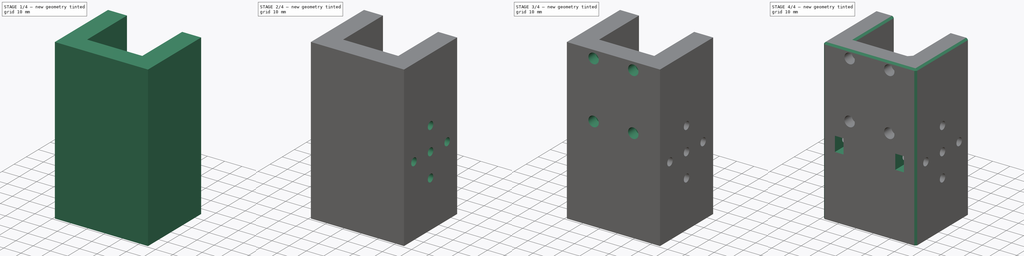
[diagram: build sequence overview — one tinted view per stage of 4, left to right]
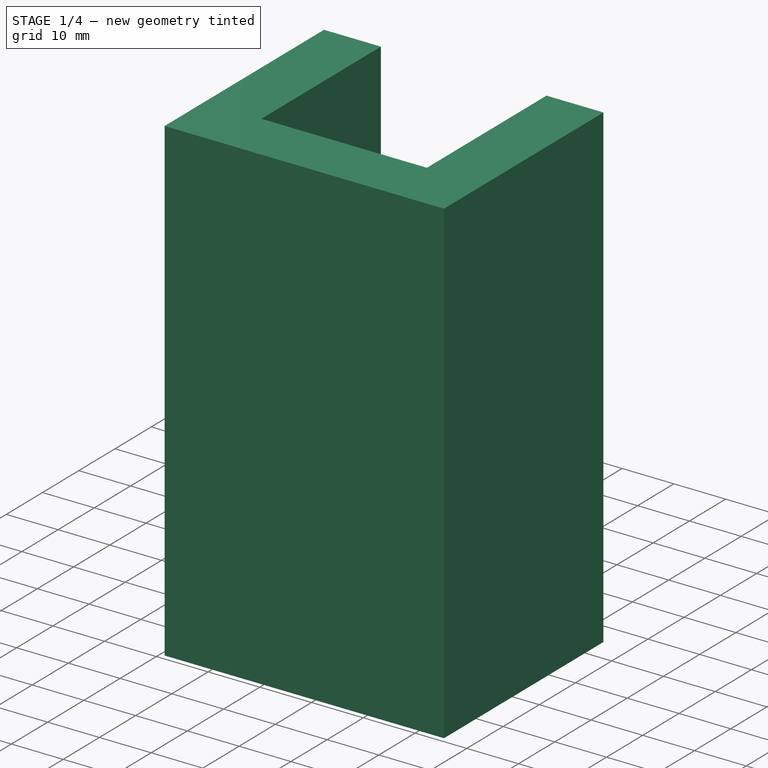
[diagram: stage 1 of 4 — iso view after this stage's code; geometry added in this stage tinted green]
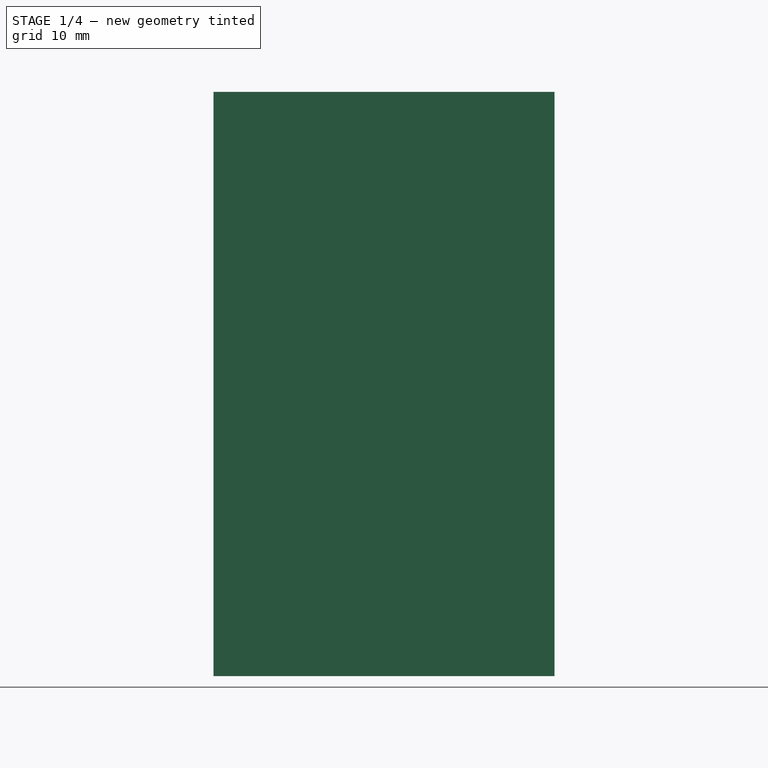
[diagram: stage 1 of 4 — front view after this stage's code; geometry added in this stage tinted green]
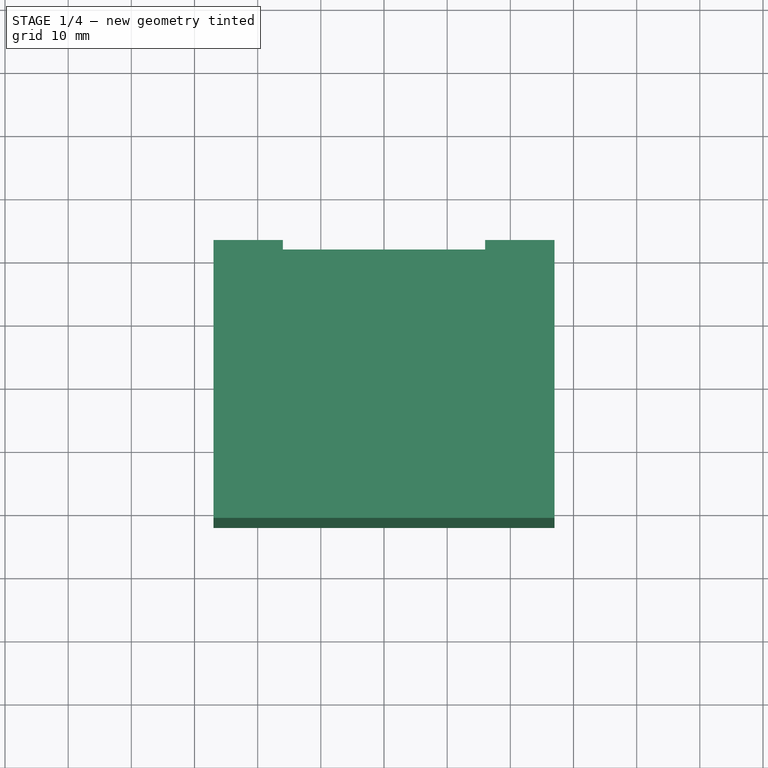
[diagram: stage 1 of 4 — top view after this stage's code; geometry added in this stage tinted green]
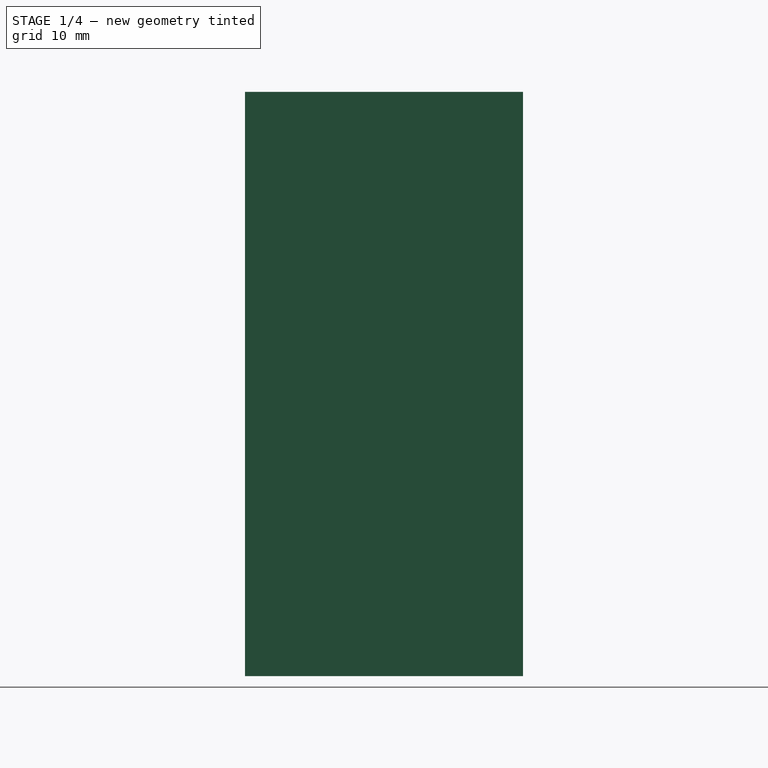
[diagram: stage 1 of 4 — right view after this stage's code; geometry added in this stage tinted green]
FCSTD DOCUMENT  (FreeCAD 0.19R24291 (Git))
Label: adapt_cameraLarger_ins_mount
License: All rights reserved
LicenseURL: http://en.wikipedia.org/wiki/All_rights_reserved
objects: Sketcher::SketchObject×8, PartDesign::Pocket×4, PartDesign::Hole×4, PartDesign::Pad×1, PartDesign::Chamfer×1, PartDesign::Body×1
note: 29 computed .brp shape members not serialized (recipe doc carries the construction recipe); baked Part::Feature solids carry a one-line shape summary decoded from their .brp

FEATURE [Sketcher::SketchObject] Sketch
  FullyConstrained = true
  MapMode = 5
  Support = -> [XY_Plane]
  sketch-geometry (4):
    g0: LineSegment StartX=-27 StartY=22 StartZ=0 EndX=27 EndY=22 EndZ=0
    g1: LineSegment StartX=27 StartY=22 StartZ=0 EndX=27 EndY=-22 EndZ=0
    g2: LineSegment StartX=27 StartY=-22 StartZ=0 EndX=-27 EndY=-22 EndZ=0
    g3: LineSegment StartX=-27 StartY=-22 StartZ=0 EndX=-27 EndY=22 EndZ=0
  constraints (12):
    c: Coincident(g0,g1)
    c: Coincident(g1,g2)
    c: Coincident(g2,g3)
    c: Coincident(g3,g0)
    c: Horizontal(g0)
    c: Horizontal(g2)
    c: Vertical(g1)
    c: Vertical(g3)
    c: DistanceX(g0,g0) = 54
    c: DistanceY(g1,g1) = 44
    c: DistanceY(g-1,g0) = 22
    c: DistanceX(g-1,g0) = 27
FEATURE [PartDesign::Pad] Pad
  Direction = (1,1,1)
  Length = 92.5
  Length2 = 100
  Profile = -> Sketch
  Type = 0
FEATURE [Sketcher::SketchObject] Sketch001
  FullyConstrained = true
  MapMode = 5
  Placement = pos=(0,0,92.5) rot=(0,0,1;0rad)
  Support = -> [Pad]
  sketch-geometry (4):
    g0: LineSegment StartX=-16 StartY=33 StartZ=0 EndX=16 EndY=33 EndZ=0
    g1: LineSegment StartX=16 StartY=33 StartZ=0 EndX=16 EndY=-11 EndZ=0
    g2: LineSegment StartX=16 StartY=-11 StartZ=0 EndX=-16 EndY=-11 EndZ=0
    g3: LineSegment StartX=-16 StartY=-11 StartZ=0 EndX=-16 EndY=33 EndZ=0
  constraints (12):
    c: Coincident(g0,g1)
    c: Coincident(g1,g2)
    c: Coincident(g2,g3)
    c: Coincident(g3,g0)
    c: Horizontal(g0)
    c: Horizontal(g2)
    c: Vertical(g1)
    c: Vertical(g3)
    c: DistanceX(g0,g0) = 32
    c: DistanceX(g0,g-1) = 16
    c: DistanceY(g1,g-1) = 11
    c: DistanceY(g1,g1) = 44
FEATURE [PartDesign::Pocket] Pocket
  BaseFeature = -> Pad
  Length = 86.5
  Length2 = 100
  Profile = -> Sketch001
  Type = 0
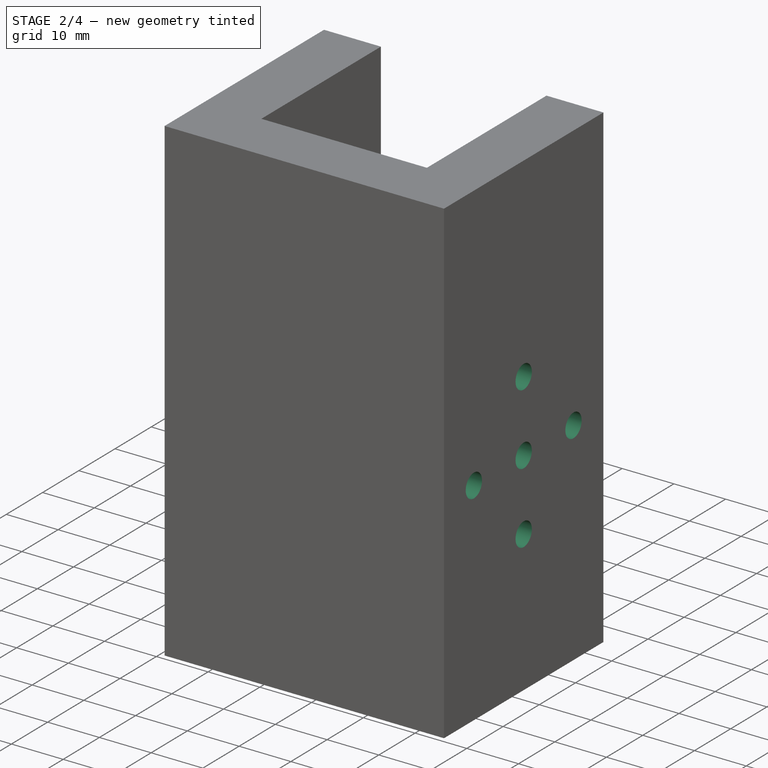
[diagram: stage 2 of 4 — iso view after this stage's code; geometry added in this stage tinted green]
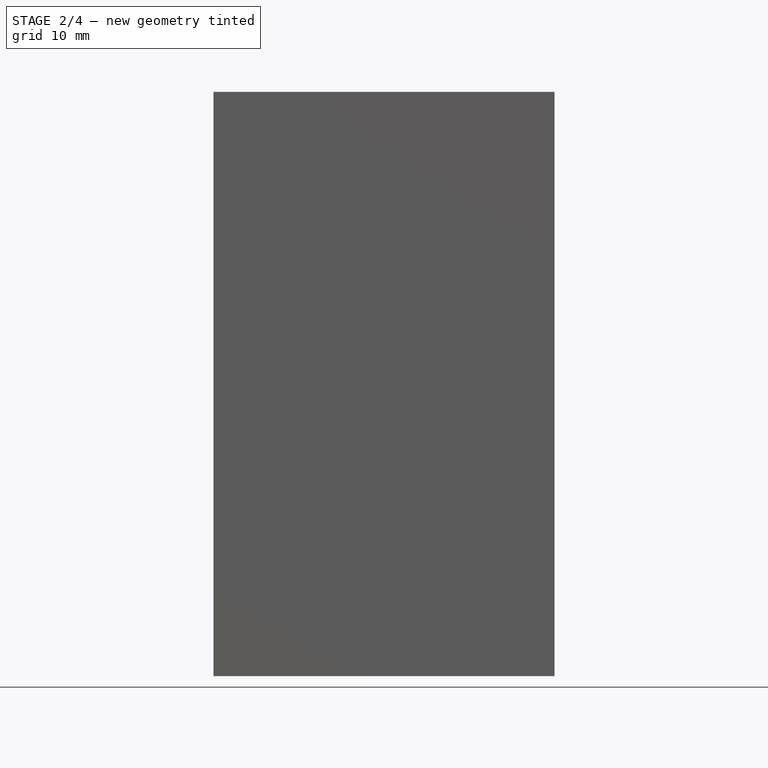
[diagram: stage 2 of 4 — front view after this stage's code; geometry added in this stage tinted green]
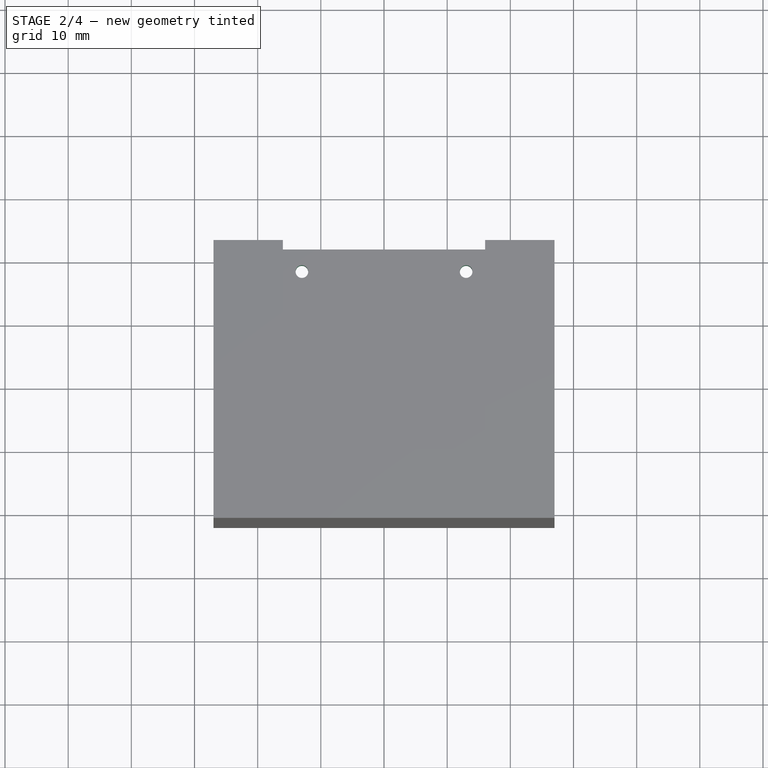
[diagram: stage 2 of 4 — top view after this stage's code; geometry added in this stage tinted green]
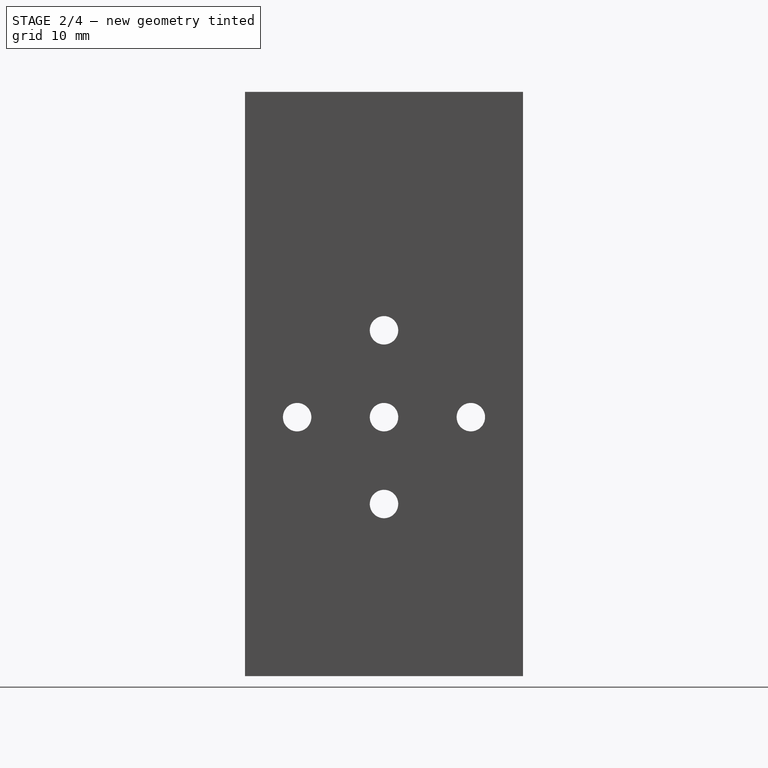
[diagram: stage 2 of 4 — right view after this stage's code; geometry added in this stage tinted green]
FEATURE [Sketcher::SketchObject] Sketch002
  FullyConstrained = true
  MapMode = 5
  Placement = pos=(0,0,0) rot=(0.57735,0.57735,0.57735;2.0944rad)
  Support = -> [YZ_Plane]
  sketch-geometry (5):
    g0: Circle CenterX=0 CenterY=41 CenterZ=0 NormalX=0 NormalY=0 NormalZ=1 AngleXU=0 Radius=1.6
    g1: Circle CenterX=13.75 CenterY=41 CenterZ=0 NormalX=0 NormalY=0 NormalZ=1 AngleXU=0 Radius=1.6
    g2: Circle CenterX=0 CenterY=54.75 CenterZ=0 NormalX=0 NormalY=0 NormalZ=1 AngleXU=0 Radius=1.6
    g3: Circle CenterX=0 CenterY=27.25 CenterZ=0 NormalX=0 NormalY=0 NormalZ=1 AngleXU=0 Radius=1.6
    g4: Circle CenterX=-13.75 CenterY=41 CenterZ=0 NormalX=0 NormalY=0 NormalZ=1 AngleXU=0 Radius=1.6
  constraints (15):
    c: PointOnObject(g0,g-2)
    c: PointOnObject(g2,g-2)
    c: PointOnObject(g3,g-2)
    c: Diameter(g0) = 3.2
    c: Equal(g0,g1)
    c: Equal(g0,g3)
    c: Equal(g0,g2)
    c: Equal(g4,g0)
    c: DistanceY(g-1,g0) = 41
    c: DistanceY(g0,g3) = -13.75
    c: DistanceY(g0,g2) = 13.75
    c: DistanceX(g4,g1) = 27.5
    c: DistanceX(g0,g1) = 13.75
    c: DistanceY(g0,g1) = 0
    c: DistanceY(g0,g4) = 0
FEATURE [PartDesign::Hole] Hole
  BaseFeature = -> Pocket
  Depth = 50
  DepthType = 0
  Diameter = 4.5
  DrillForDepth = false
  DrillPoint = 1
  DrillPointAngle = 118
  HoleCutCountersinkAngle = 90
  HoleCutCustomValues = false
  HoleCutDepth = 0
  HoleCutDiameter = 6
  HoleCutType = 0
  ModelActualThread = false
  Profile = -> Sketch002
  Tapered = false
  TaperedAngle = 90
  ThreadAngle = 0
  ThreadClass = 0
  ThreadCutOffInner = 0
  ThreadCutOffOuter = 0
  ThreadDirection = 0
  ThreadFit = 0
  ThreadPitch = 0
  ThreadSize = 0
  ThreadType = 0
  Threaded = false
FEATURE [PartDesign::Hole] Hole001
  BaseFeature = -> Hole
  Depth = 50
  DepthType = 0
  Diameter = 4.5
  DrillForDepth = false
  DrillPoint = 0
  DrillPointAngle = 118
  HoleCutCountersinkAngle = 90
  HoleCutCustomValues = false
  HoleCutDepth = 0
  HoleCutDiameter = 6.1
  HoleCutType = 0
  ModelActualThread = false
  Profile = -> Sketch002
  Reversed = true
  Tapered = false
  TaperedAngle = 90
  ThreadAngle = 0
  ThreadClass = 0
  ThreadCutOffInner = 0
  ThreadCutOffOuter = 0
  ThreadDirection = 0
  ThreadFit = 2
  ThreadPitch = 0
  ThreadSize = 0
  ThreadType = 0
  Threaded = false
FEATURE [Sketcher::SketchObject] Sketch003
  FullyConstrained = true
  MapMode = 5
  Support = -> [XY_Plane]
  sketch-geometry (4):
    g0: Circle CenterX=-13 CenterY=18.5 CenterZ=0 NormalX=0 NormalY=0 NormalZ=1 AngleXU=0 Radius=1.05
    g1: Circle CenterX=13 CenterY=18.5 CenterZ=0 NormalX=0 NormalY=0 NormalZ=1 AngleXU=0 Radius=1.05
    g2: Circle CenterX=13 CenterY=-18.5 CenterZ=0 NormalX=0 NormalY=0 NormalZ=1 AngleXU=0 Radius=1.05
    g3: Circle CenterX=-13 CenterY=-18.5 CenterZ=0 NormalX=0 NormalY=0 NormalZ=1 AngleXU=0 Radius=1.05
  constraints (12):
    c: Diameter(g1) = 2.1
    c: Equal(g0,g1)
    c: Equal(g2,g1)
    c: Equal(g3,g1)
    c: DistanceY(g2,g1) = 37
    c: DistanceY(g3,g0) = 37
    c: DistanceY(g1,g0) = 0
    c: DistanceY(g-1,g1) = 18.5
    c: DistanceX(g0,g1) = 26
    c: DistanceX(g3,g2) = 26
    c: DistanceX(g2,g1) = 0
    c: DistanceX(g-1,g1) = 13
FEATURE [PartDesign::Hole] Hole002
  BaseFeature = -> Hole001
  Depth = 12
  DepthType = 0
  Diameter = 2
  DrillForDepth = false
  DrillPoint = 0
  DrillPointAngle = 118
  HoleCutCountersinkAngle = 90
  HoleCutCustomValues = false
  HoleCutDepth = 0
  HoleCutDiameter = 6.1
  HoleCutType = 0
  ModelActualThread = false
  Profile = -> Sketch003
  Reversed = true
  Tapered = false
  TaperedAngle = 90
  ThreadAngle = 0
  ThreadClass = 0
  ThreadCutOffInner = 0
  ThreadCutOffOuter = 0
  ThreadDirection = 0
  ThreadFit = 0
  ThreadPitch = 0
  ThreadSize = 0
  ThreadType = 0
  Threaded = false
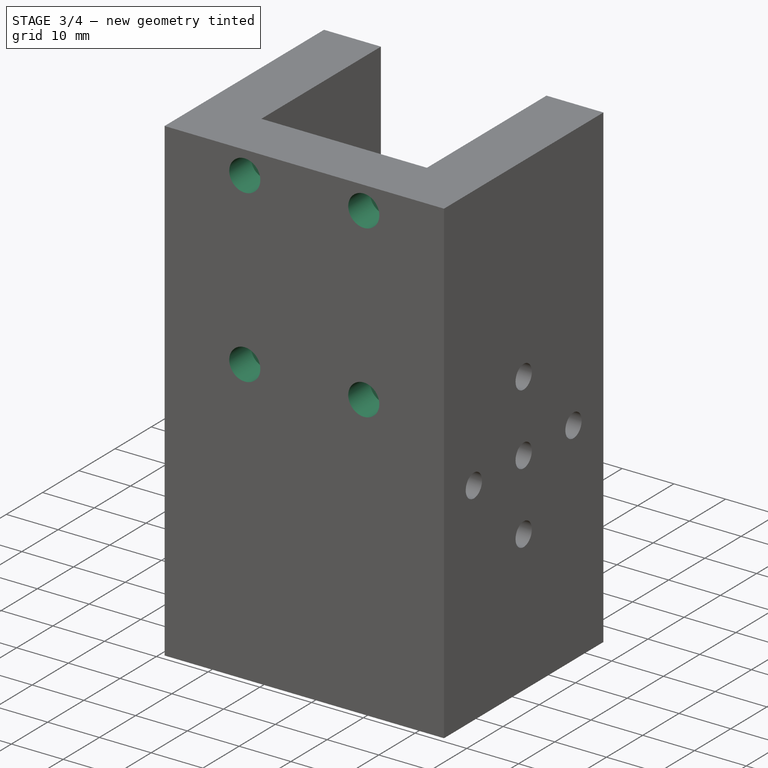
[diagram: stage 3 of 4 — iso view after this stage's code; geometry added in this stage tinted green]
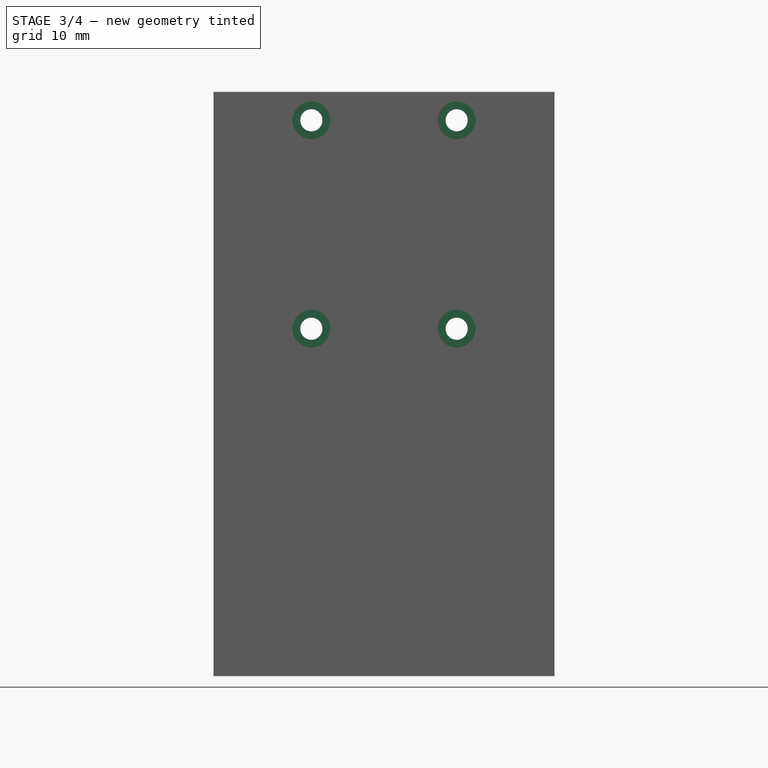
[diagram: stage 3 of 4 — front view after this stage's code; geometry added in this stage tinted green]
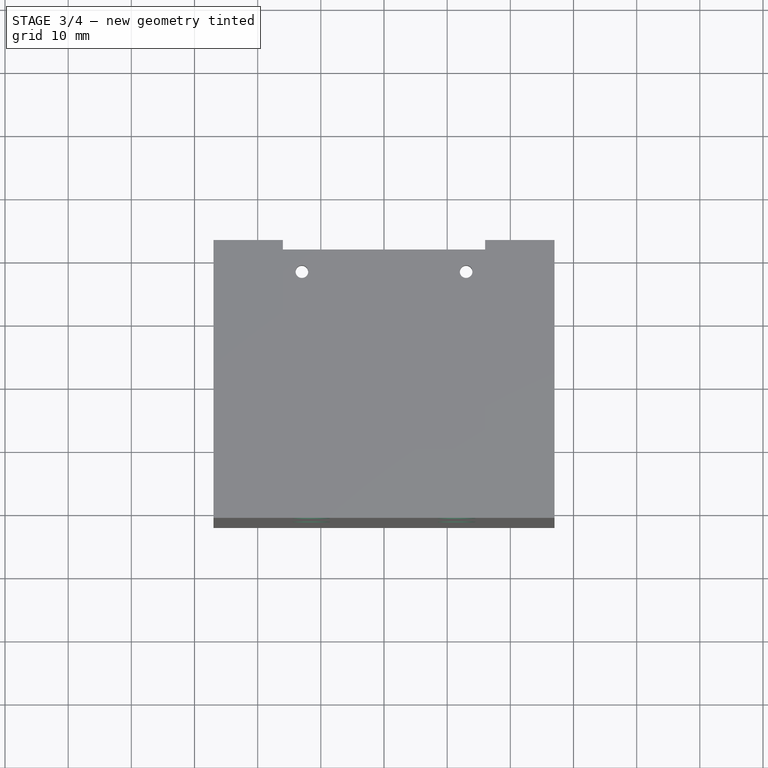
[diagram: stage 3 of 4 — top view after this stage's code; geometry added in this stage tinted green]
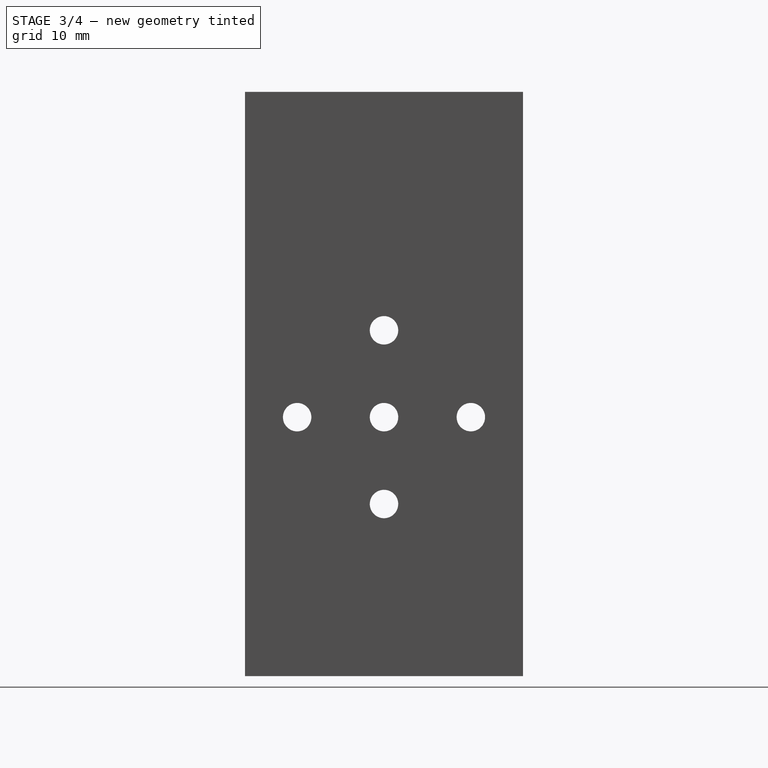
[diagram: stage 3 of 4 — right view after this stage's code; geometry added in this stage tinted green]
FEATURE [Sketcher::SketchObject] Sketch004
  FullyConstrained = true
  MapMode = 5
  Placement = pos=(0,-22,0) rot=(1,0,0;1.5708rad)
  Support = -> [Hole002]
  sketch-geometry (4):
    g0: Circle CenterX=-11.5 CenterY=88 CenterZ=0 NormalX=0 NormalY=0 NormalZ=1 AngleXU=0 Radius=1.6
    g1: Circle CenterX=11.5 CenterY=88 CenterZ=0 NormalX=0 NormalY=0 NormalZ=1 AngleXU=0 Radius=1.6
    g2: Circle CenterX=11.5 CenterY=55 CenterZ=0 NormalX=0 NormalY=0 NormalZ=1 AngleXU=0 Radius=1.6
    g3: Circle CenterX=-11.5 CenterY=55 CenterZ=0 NormalX=0 NormalY=0 NormalZ=1 AngleXU=0 Radius=1.6
  constraints (12):
    c: Diameter(g1) = 3.2
    c: Equal(g2,g1)
    c: Equal(g0,g1)
    c: Equal(g1,g3)
    c: DistanceX(g0,g1) = 23
    c: DistanceX(g3,g2) = 23
    c: DistanceX(g1,g2) = 0
    c: DistanceX(g-1,g1) = 11.5
    c: DistanceY(g2,g1) = 33
    c: DistanceY(g0,g1) = 0
    c: DistanceY(g3,g0) = 33
    c: DistanceY(g-1,g1) = 88
FEATURE [PartDesign::Hole] Hole003
  BaseFeature = -> Hole002
  Depth = 25
  DepthType = 0
  Diameter = 3.5
  DrillForDepth = false
  DrillPoint = 1
  DrillPointAngle = 118
  HoleCutCountersinkAngle = 90
  HoleCutCustomValues = false
  HoleCutDepth = 6
  HoleCutDiameter = 6
  HoleCutType = 1
  ModelActualThread = false
  Profile = -> Sketch004
  Tapered = false
  TaperedAngle = 90
  ThreadAngle = 0
  ThreadClass = 0
  ThreadCutOffInner = 0
  ThreadCutOffOuter = 0
  ThreadDirection = 0
  ThreadFit = 0
  ThreadPitch = 0
  ThreadSize = 0
  ThreadType = 0
  Threaded = false
FEATURE [Sketcher::SketchObject] Sketch005
  FullyConstrained = true
  MapMode = 5
  Placement = pos=(16,0,0) rot=(0.57735,-0.57735,-0.57735;2.0944rad)
  sketch-geometry (28):
    g0: LineSegment StartX=2.4 StartY=50.8431 StartZ=0 EndX=4.8 EndY=55 EndZ=0
    g1: LineSegment StartX=4.8 StartY=55 StartZ=0 EndX=2.4 EndY=59.1569 EndZ=0
    g2: LineSegment StartX=2.4 StartY=59.1569 StartZ=0 EndX=-2.4 EndY=59.1569 EndZ=0
    g3: LineSegment StartX=-2.4 StartY=59.1569 StartZ=0 EndX=-4.8 EndY=55 EndZ=0
    g4: LineSegment StartX=-4.8 StartY=55 StartZ=0 EndX=-2.4 EndY=50.8431 EndZ=0
    g5: LineSegment StartX=-2.4 StartY=50.8431 StartZ=0 EndX=2.4 EndY=50.8431 EndZ=0
    g6: Circle CenterX=-1.4e-15 CenterY=55 CenterZ=0 NormalX=0 NormalY=0 NormalZ=1 AngleXU=0 Radius=4.8
    g7: LineSegment StartX=2.4 StartY=36.8431 StartZ=0 EndX=4.8 EndY=41 EndZ=0
    g8: LineSegment StartX=4.8 StartY=41 StartZ=0 EndX=2.4 EndY=45.1569 EndZ=0
    g9: LineSegment StartX=2.4 StartY=45.1569 StartZ=0 EndX=-2.4 EndY=45.1569 EndZ=0
    g10: LineSegment StartX=-2.4 StartY=45.1569 StartZ=0 EndX=-4.8 EndY=41 EndZ=0
    g11: LineSegment StartX=-4.8 StartY=41 StartZ=0 EndX=-2.4 EndY=36.8431 EndZ=0
    g12: LineSegment StartX=-2.4 StartY=36.8431 StartZ=0 EndX=2.4 EndY=36.8431 EndZ=0
    g13: Circle CenterX=5.1022e-12 CenterY=41 CenterZ=0 NormalX=0 NormalY=0 NormalZ=1 AngleXU=0 Radius=4.8
    g14: LineSegment StartX=-11.6 StartY=36.8431 StartZ=0 EndX=-9.2 EndY=41 EndZ=0
    g15: LineSegment StartX=-9.2 StartY=41 StartZ=0 EndX=-11.6 EndY=45.1569 EndZ=0
    g16: LineSegment StartX=-11.6 StartY=45.1569 StartZ=0 EndX=-16.4 EndY=45.1569 EndZ=0
    g17: LineSegment StartX=-16.4 StartY=45.1569 StartZ=0 EndX=-18.8 EndY=41 EndZ=0
    g18: LineSegment StartX=-18.8 StartY=41 StartZ=0 EndX=-16.4 EndY=36.8431 EndZ=0
    g19: LineSegment StartX=-16.4 StartY=36.8431 StartZ=0 EndX=-11.6 EndY=36.8431 EndZ=0
    g20: Circle CenterX=-14 CenterY=41 CenterZ=0 NormalX=0 NormalY=0 NormalZ=1 AngleXU=0 Radius=4.8
    g21: LineSegment StartX=2.4 StartY=22.8431 StartZ=0 EndX=4.8 EndY=27 EndZ=0
    g22: LineSegment StartX=4.8 StartY=27 StartZ=0 EndX=2.4 EndY=31.1569 EndZ=0
    g23: LineSegment StartX=2.4 StartY=31.1569 StartZ=0 EndX=-2.4 EndY=31.1569 EndZ=0
    g24: LineSegment StartX=-2.4 StartY=31.1569 StartZ=0 EndX=-4.8 EndY=27 EndZ=0
    g25: LineSegment StartX=-4.8 StartY=27 StartZ=0 EndX=-2.4 EndY=22.8431 EndZ=0
    g26: LineSegment StartX=-2.4 StartY=22.8431 StartZ=0 EndX=2.4 EndY=22.8431 EndZ=0
    g27: Circle CenterX=-1.6e-15 CenterY=27 CenterZ=0 NormalX=0 NormalY=0 NormalZ=1 AngleXU=0 Radius=4.8
  constraints (68):
    c: Coincident(g0,g1)
    c: Coincident(g1,g2)
    c: Coincident(g2,g3)
    c: Coincident(g3,g4)
    c: Coincident(g4,g5)
    c: Coincident(g5,g0)
    c: Equal(g0, g1-g5) x5
    c: PointOnObject(g0,g6)
    c: PointOnObject(g1,g6)
    c: PointOnObject(g2,g6)
    c: PointOnObject(g3,g6)
    c: PointOnObject(g4,g6)
    c: PointOnObject(g5,g6)
    c: PointOnObject(g6,g-2)
    c: Coincident(g7,g8)
    c: Coincident(g8,g9)
    c: Coincident(g9,g10)
    c: Coincident(g10,g11)
    c: Coincident(g11,g12)
    c: Coincident(g12,g7)
    c: Equal(g7, g8-g12) x5
    c: PointOnObject(g7,g13)
    c: PointOnObject(g8,g13)
    c: PointOnObject(g9,g13)
    c: PointOnObject(g10,g13)
    c: PointOnObject(g11,g13)
    c: PointOnObject(g12,g13)
    c: PointOnObject(g13,g-2)
    c: Coincident(g14,g15)
    c: Coincident(g15,g16)
    c: Coincident(g16,g17)
    c: Coincident(g17,g18)
    c: Coincident(g18,g19)
    c: Coincident(g19,g14)
    c: Equal(g14, g15-g19) x5
    c: PointOnObject(g14,g20)
    c: PointOnObject(g15,g20)
    c: PointOnObject(g16,g20)
    c: PointOnObject(g17,g20)
    c: PointOnObject(g18,g20)
    c: PointOnObject(g19,g20)
    c: Coincident(g21,g22)
    c: Coincident(g22,g23)
    c: Coincident(g23,g24)
    c: Coincident(g24,g25)
    c: Coincident(g25,g26)
    c: Coincident(g26,g21)
    c: Equal(g21, g22-g26) x5
    c: PointOnObject(g21,g27)
    c: PointOnObject(g22,g27)
    c: PointOnObject(g23,g27)
    c: PointOnObject(g24,g27)
    c: PointOnObject(g25,g27)
    c: PointOnObject(g26,g27)
    c: PointOnObject(g27,g-2)
    c: Diameter(g20) = 9.6
    c: Equal(g13,g20)
    c: Equal(g27,g20)
    c: Equal(g6,g20)
    c: DistanceY(g20,g13) = 0
    c: DistanceY(g-1,g13) = 41
    c: DistanceY(g13,g6) = 14
    c: DistanceY(g27,g6) = 28
    c: DistanceX(g13,g20) = -14
    c: Horizontal(g2)
    c: Horizontal(g16)
    c: Horizontal(g23)
    c: Horizontal(g12)
FEATURE [Sketcher::SketchObject] Sketch006
  FullyConstrained = true
  MapMode = 5
  Placement = pos=(-16,0,0) rot=(0.57735,0.57735,0.57735;2.0944rad)
  Support = -> [Hole003]
  sketch-geometry (28):
    g0: LineSegment StartX=2.4 StartY=50.8431 StartZ=0 EndX=4.8 EndY=55 EndZ=0
    g1: LineSegment StartX=4.8 StartY=55 StartZ=0 EndX=2.4 EndY=59.1569 EndZ=0
    g2: LineSegment StartX=2.4 StartY=59.1569 StartZ=0 EndX=-2.4 EndY=59.1569 EndZ=0
    g3: LineSegment StartX=-2.4 StartY=59.1569 StartZ=0 EndX=-4.8 EndY=55 EndZ=0
    g4: LineSegment StartX=-4.8 StartY=55 StartZ=0 EndX=-2.4 EndY=50.8431 EndZ=0
    g5: LineSegment StartX=-2.4 StartY=50.8431 StartZ=0 EndX=2.4 EndY=50.8431 EndZ=0
    g6: Circle CenterX=-2e-15 CenterY=55 CenterZ=0 NormalX=0 NormalY=0 NormalZ=1 AngleXU=0 Radius=4.8
    g7: LineSegment StartX=2.4 StartY=36.8431 StartZ=0 EndX=4.8 EndY=41 EndZ=0
    g8: LineSegment StartX=4.8 StartY=41 StartZ=0 EndX=2.4 EndY=45.1569 EndZ=0
    g9: LineSegment StartX=2.4 StartY=45.1569 StartZ=0 EndX=-2.4 EndY=45.1569 EndZ=0
    g10: LineSegment StartX=-2.4 StartY=45.1569 StartZ=0 EndX=-4.8 EndY=41 EndZ=0
    g11: LineSegment StartX=-4.8 StartY=41 StartZ=0 EndX=-2.4 EndY=36.8431 EndZ=0
    g12: LineSegment StartX=-2.4 StartY=36.8431 StartZ=0 EndX=2.4 EndY=36.8431 EndZ=0
    g13: Circle CenterX=-5.0905e-12 CenterY=41 CenterZ=0 NormalX=0 NormalY=0 NormalZ=1 AngleXU=0 Radius=4.8
    g14: LineSegment StartX=16.4 StartY=36.8431 StartZ=0 EndX=18.8 EndY=41 EndZ=0
    g15: LineSegment StartX=18.8 StartY=41 StartZ=0 EndX=16.4 EndY=45.1569 EndZ=0
    g16: LineSegment StartX=16.4 StartY=45.1569 StartZ=0 EndX=11.6 EndY=45.1569 EndZ=0
    g17: LineSegment StartX=11.6 StartY=45.1569 StartZ=0 EndX=9.2 EndY=41 EndZ=0
    g18: LineSegment StartX=9.2 StartY=41 StartZ=0 EndX=11.6 EndY=36.8431 EndZ=0
    g19: LineSegment StartX=11.6 StartY=36.8431 StartZ=0 EndX=16.4 EndY=36.8431 EndZ=0
    g20: Circle CenterX=14 CenterY=41 CenterZ=0 NormalX=0 NormalY=0 NormalZ=1 AngleXU=0 Radius=4.8
    g21: LineSegment StartX=2.4 StartY=22.8431 StartZ=0 EndX=4.8 EndY=27 EndZ=0
    g22: LineSegment StartX=4.8 StartY=27 StartZ=0 EndX=2.4 EndY=31.1569 EndZ=0
    g23: LineSegment StartX=2.4 StartY=31.1569 StartZ=0 EndX=-2.4 EndY=31.1569 EndZ=0
    g24: LineSegment StartX=-2.4 StartY=31.1569 StartZ=0 EndX=-4.8 EndY=27 EndZ=0
    g25: LineSegment StartX=-4.8 StartY=27 StartZ=0 EndX=-2.4 EndY=22.8431 EndZ=0
    g26: LineSegment StartX=-2.4 StartY=22.8431 StartZ=0 EndX=2.4 EndY=22.8431 EndZ=0
    g27: Circle CenterX=-2.2e-15 CenterY=27 CenterZ=0 NormalX=0 NormalY=0 NormalZ=1 AngleXU=0 Radius=4.8
  constraints (68):
    c: Coincident(g0,g1)
    c: Coincident(g1,g2)
    c: Coincident(g2,g3)
    c: Coincident(g3,g4)
    c: Coincident(g4,g5)
    c: Coincident(g5,g0)
    c: Equal(g0, g1-g5) x5
    c: PointOnObject(g0,g6)
    c: PointOnObject(g1,g6)
    c: PointOnObject(g2,g6)
    c: PointOnObject(g3,g6)
    c: PointOnObject(g4,g6)
    c: PointOnObject(g5,g6)
    c: PointOnObject(g6,g-2)
    c: Coincident(g7,g8)
    c: Coincident(g8,g9)
    c: Coincident(g9,g10)
    c: Coincident(g10,g11)
    c: Coincident(g11,g12)
    c: Coincident(g12,g7)
    c: Equal(g7, g8-g12) x5
    c: PointOnObject(g7,g13)
    c: PointOnObject(g8,g13)
    c: PointOnObject(g9,g13)
    c: PointOnObject(g10,g13)
    c: PointOnObject(g11,g13)
    c: PointOnObject(g12,g13)
    c: PointOnObject(g13,g-2)
    c: Coincident(g14,g15)
    c: Coincident(g15,g16)
    c: Coincident(g16,g17)
    c: Coincident(g17,g18)
    c: Coincident(g18,g19)
    c: Coincident(g19,g14)
    c: Equal(g14, g15-g19) x5
    c: PointOnObject(g14,g20)
    c: PointOnObject(g15,g20)
    c: PointOnObject(g16,g20)
    c: PointOnObject(g17,g20)
    c: PointOnObject(g18,g20)
    c: PointOnObject(g19,g20)
    c: Coincident(g21,g22)
    c: Coincident(g22,g23)
    c: Coincident(g23,g24)
    c: Coincident(g24,g25)
    c: Coincident(g25,g26)
    c: Coincident(g26,g21)
    c: Equal(g21, g22-g26) x5
    c: PointOnObject(g21,g27)
    c: PointOnObject(g22,g27)
    c: PointOnObject(g23,g27)
    c: PointOnObject(g24,g27)
    c: PointOnObject(g25,g27)
    c: PointOnObject(g26,g27)
    c: PointOnObject(g27,g-2)
    c: Diameter(g20) = 9.6
    c: Equal(g13,g20)
    c: Equal(g27,g20)
    c: Equal(g6,g20)
    c: DistanceY(g20,g13) = 0
    c: DistanceY(g-1,g13) = 41
    c: DistanceY(g13,g6) = 14
    c: DistanceY(g27,g6) = 28
    c: DistanceX(g13,g20) = 14
    c: Horizontal(g2)
    c: Horizontal(g16)
    c: Horizontal(g23)
    c: Horizontal(g12)
FEATURE [PartDesign::Pocket] Pocket001
  BaseFeature = -> Hole003
  Length = 4
  Length2 = 100
  Profile = -> Sketch005
  Type = 0
FEATURE [PartDesign::Pocket] Pocket002
  BaseFeature = -> Pocket001
  Length = 4
  Length2 = 100
  Profile = -> Sketch006
  Type = 0
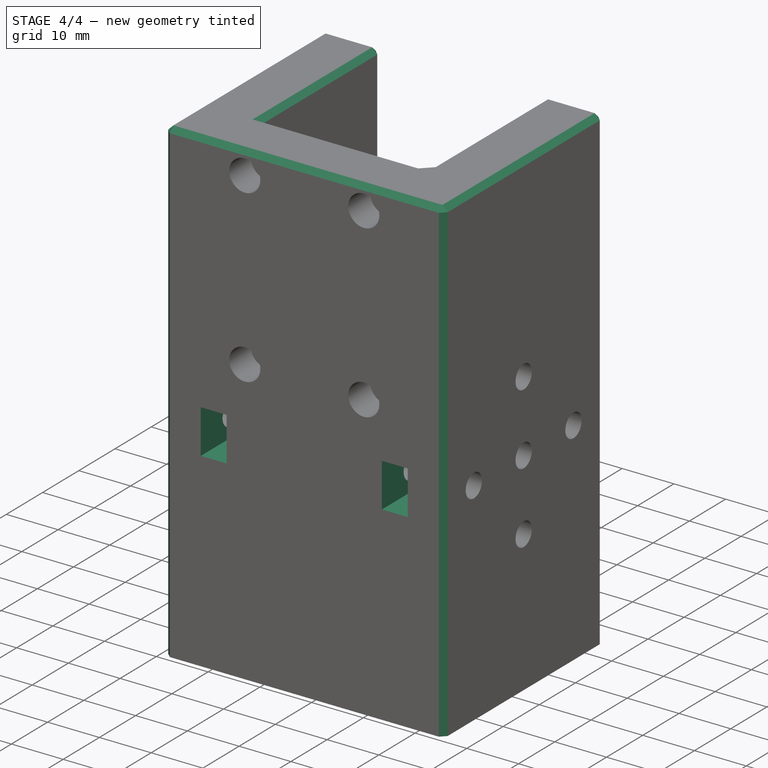
[diagram: stage 4 of 4 — iso view after this stage's code; geometry added in this stage tinted green]
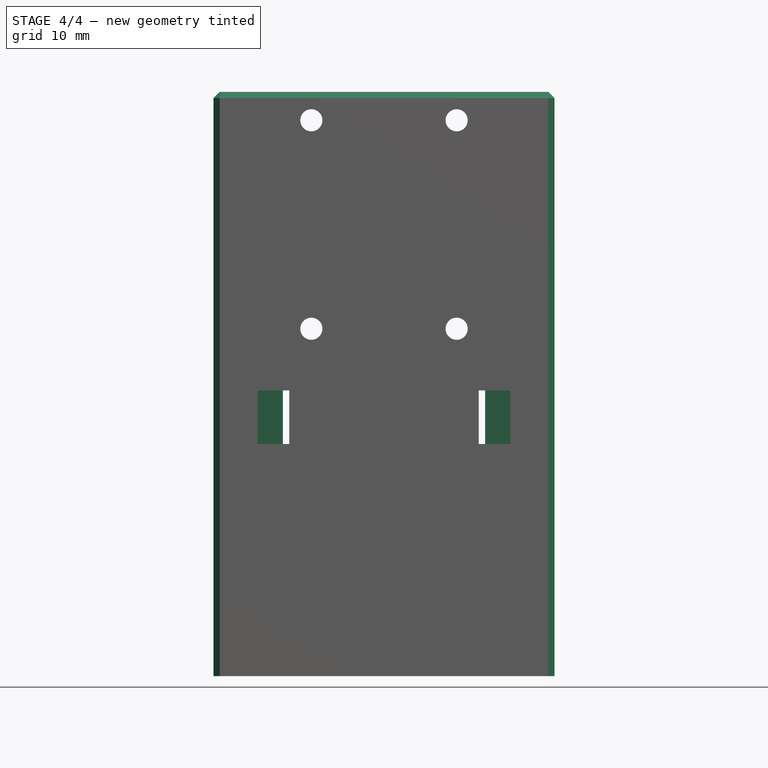
[diagram: stage 4 of 4 — front view after this stage's code; geometry added in this stage tinted green]
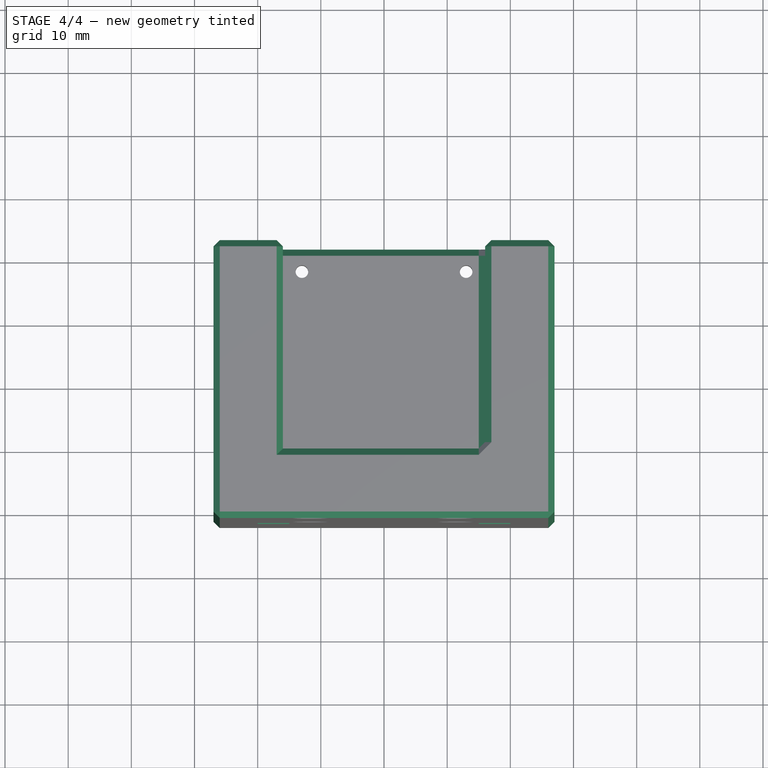
[diagram: stage 4 of 4 — top view after this stage's code; geometry added in this stage tinted green]
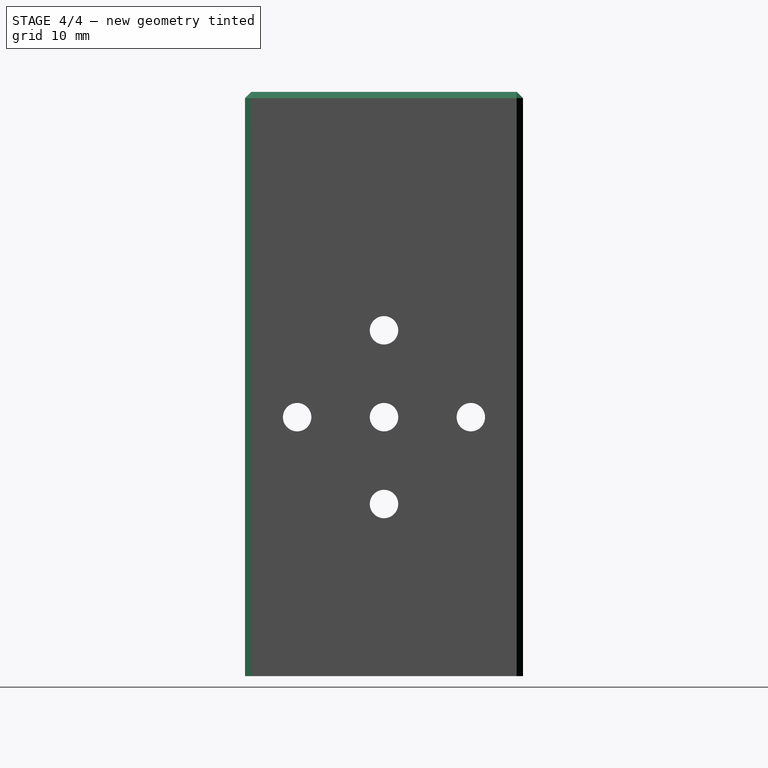
[diagram: stage 4 of 4 — right view after this stage's code; geometry added in this stage tinted green]
FEATURE [PartDesign::Chamfer] Chamfer
  Angle = 45
  Base = -> Pocket002 [Edge8,Edge83,Edge2,Edge17,Edge16,Edge25,Edge26,Edge27,Edge24,Edge23,Edge7,Edge3,Edge4,Edge5,Edge6,Edge72,Edge73,Edge74,Edge75,Edge76,Edge71,Edge67,Edge68,Edge69,Edge70,Edge65,Edge66,Edge79,Edge80,Edge81,Edge82,Edge77,Edge78,Edge61,Edge62,Edge63,Edge64,Edge59,Edge60,Edge49,+24 more]
  BaseFeature = -> Pocket002
  ChamferType = 0
  FlipDirection = false
  Size = 1
  Size2 = 1
  SupportTransform = false
FEATURE [Sketcher::SketchObject] Sketch007
  FullyConstrained = true
  MapMode = 5
  Placement = pos=(0,-22,0) rot=(1,0,0;1.5708rad)
  Support = -> [Chamfer]
  sketch-geometry (8):
    g0: LineSegment StartX=-20 StartY=45.25 StartZ=0 EndX=-15 EndY=45.25 EndZ=0
    g1: LineSegment StartX=-15 StartY=45.25 StartZ=0 EndX=-15 EndY=36.75 EndZ=0
    g2: LineSegment StartX=-15 StartY=36.75 StartZ=0 EndX=-20 EndY=36.75 EndZ=0
    g3: LineSegment StartX=-20 StartY=36.75 StartZ=0 EndX=-20 EndY=45.25 EndZ=0
    g4: LineSegment StartX=15 StartY=45.25 StartZ=0 EndX=20 EndY=45.25 EndZ=0
    g5: LineSegment StartX=20 StartY=45.25 StartZ=0 EndX=20 EndY=36.75 EndZ=0
    g6: LineSegment StartX=20 StartY=36.75 StartZ=0 EndX=15 EndY=36.75 EndZ=0
    g7: LineSegment StartX=15 StartY=36.75 StartZ=0 EndX=15 EndY=45.25 EndZ=0
  constraints (24):
    c: Coincident(g0,g1)
    c: Coincident(g1,g2)
    c: Coincident(g2,g3)
    c: Coincident(g3,g0)
    c: Horizontal(g0)
    c: Horizontal(g2)
    c: Vertical(g1)
    c: Vertical(g3)
    c: Coincident(g4,g5)
    c: Coincident(g5,g6)
    c: Coincident(g6,g7)
    c: Coincident(g7,g4)
    c: Horizontal(g4)
    c: Horizontal(g6)
    c: Vertical(g5)
    c: Vertical(g7)
    c: DistanceY(g7,g7) = 8.5
    c: Equal(g7,g1)
    c: DistanceX(g4,g4) = 5
    c: Equal(g0,g4)
    c: DistanceX(g-1,g6) = 15
    c: DistanceX(g1,g-1) = 15
    c: DistanceY(g-1,g6) = 36.75
    c: DistanceY(g-1,g1) = 36.75
FEATURE [PartDesign::Pocket] Pocket003
  BaseFeature = -> Chamfer
  Length = 13
  Length2 = 100
  Profile = -> Sketch007
  Type = 0
FEATURE [PartDesign::Body] Body
  Group = -> [Sketch,Pad,Sketch001,Pocket,Sketch002,Hole,Hole001,Sketch003,Hole002,Sketch004,Hole003,Sketch005,Pocket001,Sketch006,Pocket002,Chamfer,Sketch007,Pocket003]
  Origin = -> Origin
  Tip = -> Pocket003
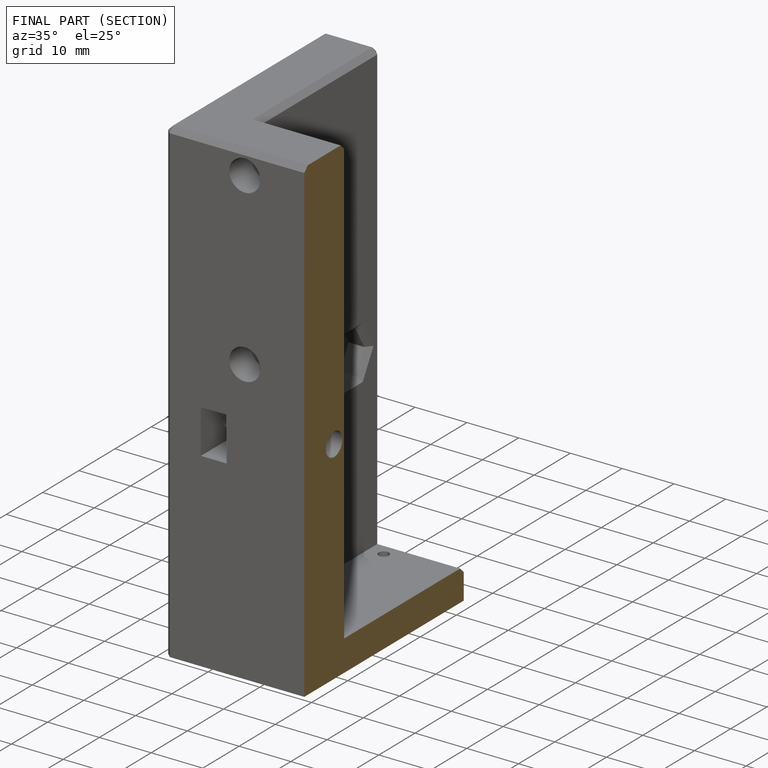
[diagram: finished part — half-section view (interior)]
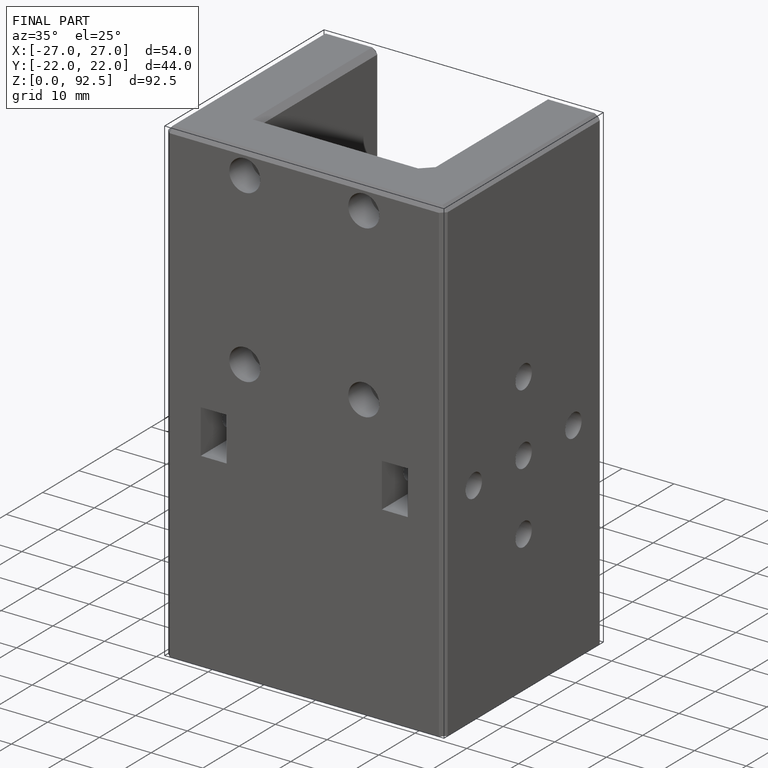
[diagram: finished part — iso view with bounding-box wireframe]
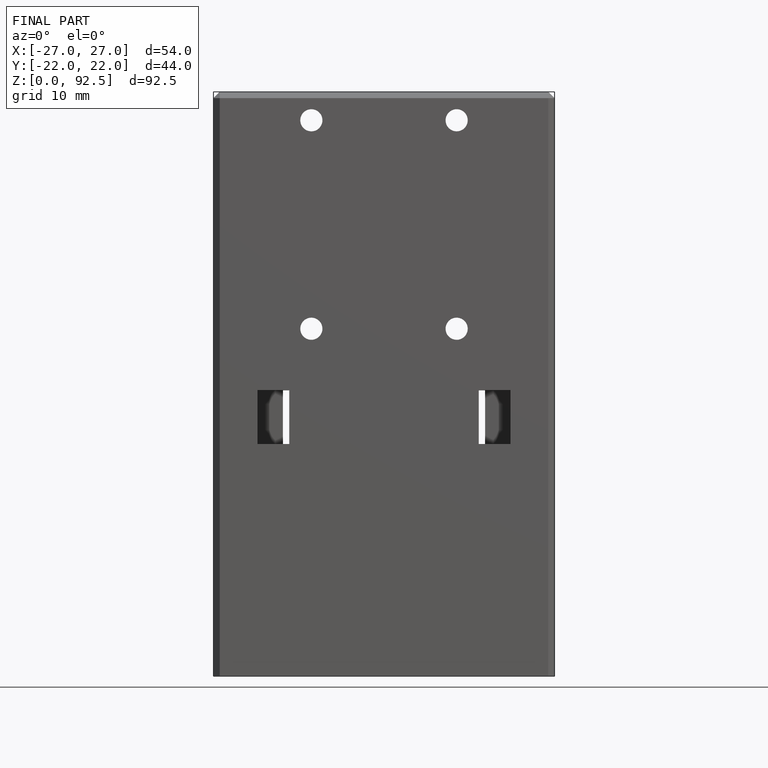
[diagram: finished part — front view with bounding-box wireframe]
